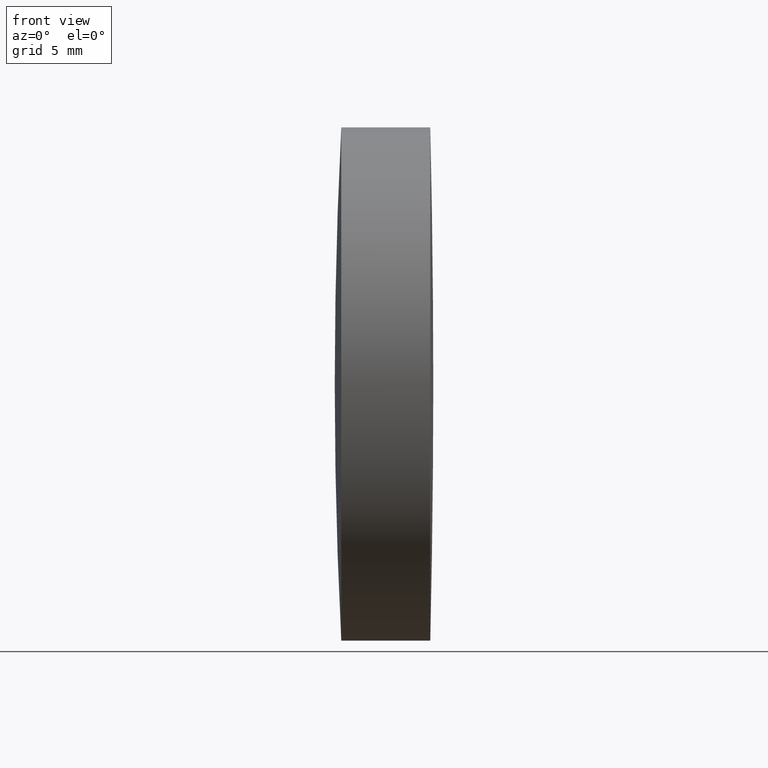
[diagram: clean part render]
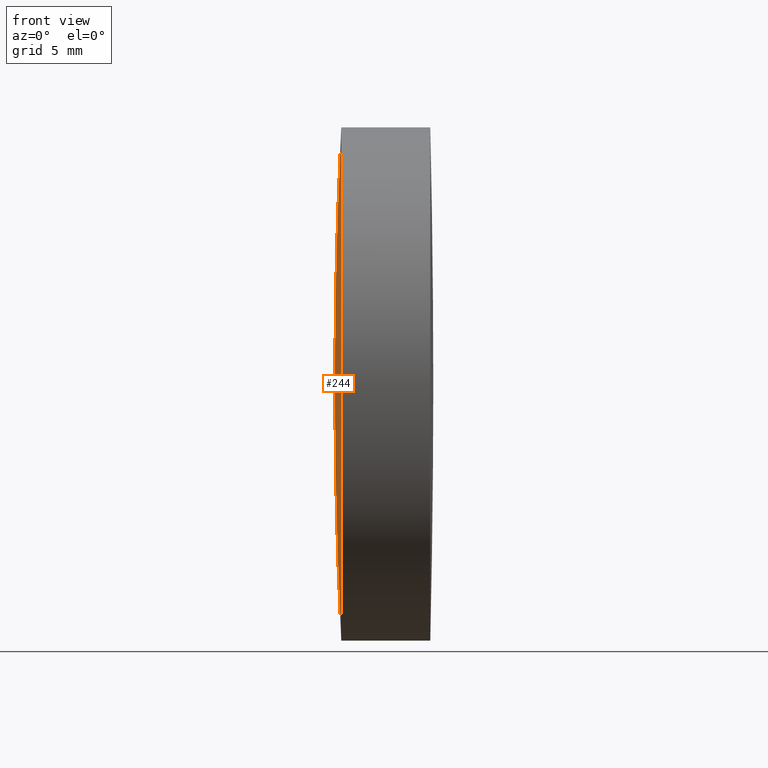
[diagram: same view with one face highlighted and labeled with its STEP entity id]
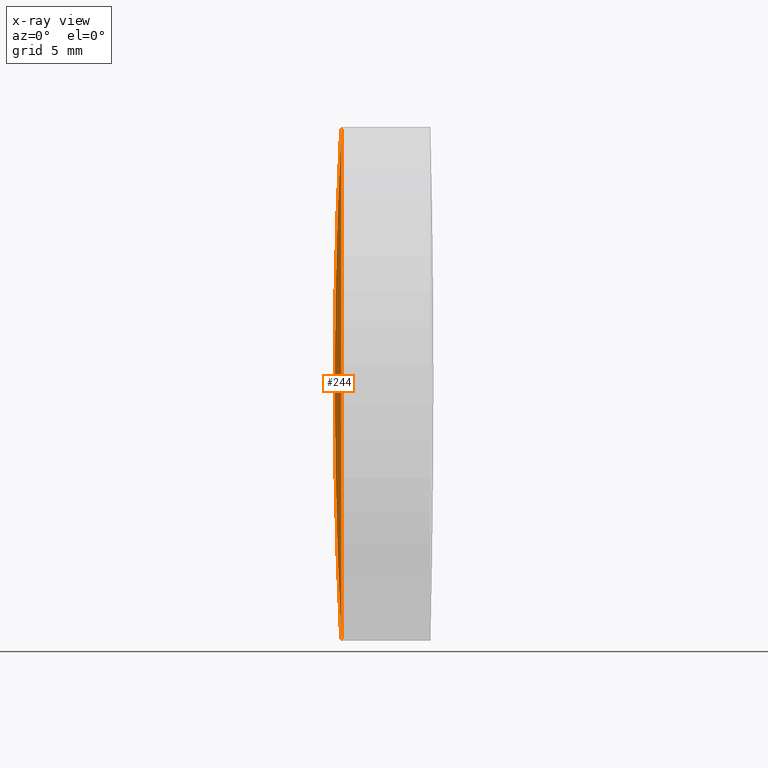
[diagram: x-ray of the same camera — body ghosted, the highlighted face saturated]
A machine part, front view. The second image highlights one B-rep face of the part: STEP entity #244.
The next image is the same camera in x-ray: the body ghosted, the highlighted face saturated — about 0% of this face is hidden behind the body in this view.
In plain terms, the highlighted spherical surface has radius 245.64 mm.
Its self-contained STEP definition (entity closure, byte-faithful):
#2 = CARTESIAN_POINT ( 'NONE',  ( 420.1096689735746800, 0.0000000000000000000, -5.399509407595717400E-016 ) ) ;
#3 = VERTEX_POINT ( 'NONE', #94 ) ;
#34 = AXIS2_PLACEMENT_3D ( 'NONE', #213, #163, #185 ) ;
#44 = DIRECTION ( 'NONE',  ( 0.0000000000000000000, -1.224646799147353500E-016, 1.000000000000000000 ) ) ;
#54 = DIRECTION ( 'NONE',  ( 0.0000000000000000000, 1.000000000000000000, 0.0000000000000000000 ) ) ;
#79 = CIRCLE ( 'NONE', #180, 12.49999999999999800 ) ;
#84 = CARTESIAN_POINT ( 'NONE',  ( 174.7879218739749900, 1.530808498934200400E-015, -12.50000000000007300 ) ) ;
#94 = CARTESIAN_POINT ( 'NONE',  ( 174.7879218739749900, 0.0000000000000000000, 12.50000000000007300 ) ) ;
#102 = VERTEX_POINT ( 'NONE', #84 ) ;
#104 = CARTESIAN_POINT ( 'NONE',  ( 174.4696689735747800, 0.0000000000000000000, 1.450116104636821900E-014 ) ) ;
#119 = CARTESIAN_POINT ( 'NONE',  ( 420.1096689735746800, 0.0000000000000000000, -5.399509407595717400E-016 ) ) ;
#135 = FACE_OUTER_BOUND ( 'NONE', #317, .T. ) ;
#139 = ORIENTED_EDGE ( 'NONE', *, *, #298, .F. ) ;
#157 = DIRECTION ( 'NONE',  ( -1.000000000000000000, -0.0000000000000000000, -0.0000000000000000000 ) ) ;
#163 = DIRECTION ( 'NONE',  ( 0.0000000000000000000, -1.000000000000000000, 0.0000000000000000000 ) ) ;
#180 = AXIS2_PLACEMENT_3D ( 'NONE', #224, #157, #345 ) ;
#185 = DIRECTION ( 'NONE',  ( 0.0000000000000000000, 0.0000000000000000000, -1.000000000000000000 ) ) ;
#196 = ORIENTED_EDGE ( 'NONE', *, *, #308, .T. ) ;
#202 = ORIENTED_EDGE ( 'NONE', *, *, #272, .T. ) ;
#213 = CARTESIAN_POINT ( 'NONE',  ( 420.1096689735746800, 0.0000000000000000000, -5.399509407595717400E-016 ) ) ;
#224 = CARTESIAN_POINT ( 'NONE',  ( 174.7879218739749900, 0.0000000000000000000, 0.0000000000000000000 ) ) ;
#244 = ADVANCED_FACE ( 'NONE', ( #135 ), #288, .T. ) ;
#256 = CIRCLE ( 'NONE', #34, 245.6399999999999300 ) ;
#257 = DIRECTION ( 'NONE',  ( -0.0000000000000000000, 1.000000000000000000, 1.224646799147353200E-016 ) ) ;
#264 = CIRCLE ( 'NONE', #269, 245.6399999999999300 ) ;
#269 = AXIS2_PLACEMENT_3D ( 'NONE', #2, #257, #44 ) ;
#270 = DIRECTION ( 'NONE',  ( 0.0000000000000000000, 0.0000000000000000000, 1.000000000000000000 ) ) ;
#272 = EDGE_CURVE ( 'NONE', #102, #3, #79, .T. ) ;
#288 = SPHERICAL_SURFACE ( 'NONE', #334, 245.6399999999999300 ) ;
#298 = EDGE_CURVE ( 'NONE', #102, #328, #264, .T. ) ;
#308 = EDGE_CURVE ( 'NONE', #3, #328, #256, .T. ) ;
#317 = EDGE_LOOP ( 'NONE', ( #139, #202, #196 ) ) ;
#328 = VERTEX_POINT ( 'NONE', #104 ) ;
#334 = AXIS2_PLACEMENT_3D ( 'NONE', #119, #54, #270 ) ;
#345 = DIRECTION ( 'NONE',  ( 0.0000000000000000000, 0.0000000000000000000, 1.000000000000000000 ) ) ;